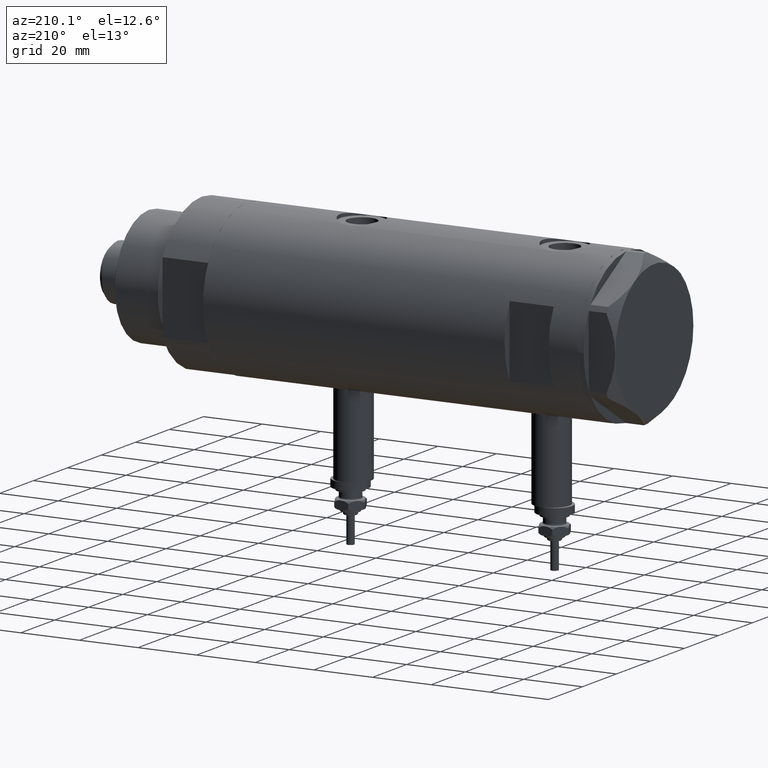
[diagram: clean part render]
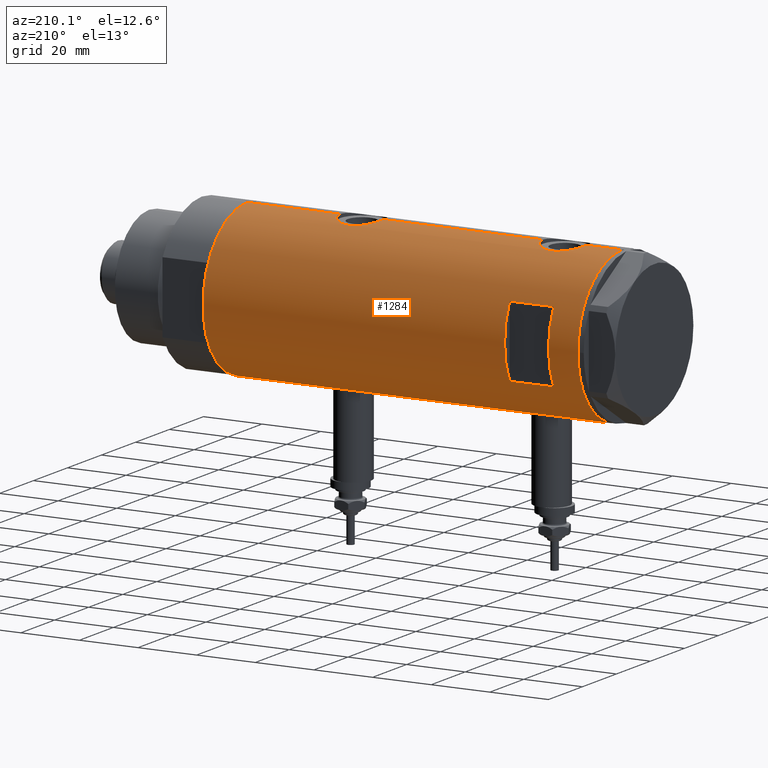
[diagram: same view with one face highlighted and labeled with its STEP entity id]
A machine part, auxiliary view. The second image highlights one B-rep face of the part: STEP entity #1284.
In plain terms, the highlighted cylindrical surface (partial cylindrical patch) has radius 26 mm, axis along (-1, -0, 0).
Its self-contained STEP definition (entity closure, byte-faithful):
#32 = EDGE_CURVE ( 'NONE', #5961, #3522, #2711, .T. ) ;
#46 = VERTEX_POINT ( 'NONE', #4993 ) ;
#73 = CARTESIAN_POINT ( 'NONE',  ( 25.78997056644824681, 3.329333406239041615, -18.01165191566153823 ) ) ;
#213 = CARTESIAN_POINT ( 'NONE',  ( -25.85406084573620689, 2.777003695811653738, 45.56412841326093854 ) ) ;
#227 = CARTESIAN_POINT ( 'NONE',  ( -25.90661719257678541, 2.209805098346974805, -21.80011254218479877 ) ) ;
#250 = CARTESIAN_POINT ( 'NONE',  ( -25.49884629689154281, 5.081547904122033721, 36.30560194303910748 ) ) ;
#255 = VERTEX_POINT ( 'NONE', #2773 ) ;
#262 = CARTESIAN_POINT ( 'NONE',  ( -12.12435565298214080, 23.00000000000000355, 53.94999999999999574 ) ) ;
#309 = EDGE_CURVE ( 'NONE', #2102, #4220, #3301, .T. ) ;
#325 = CARTESIAN_POINT ( 'NONE',  ( -25.43062364804612230, 5.412314182902756343, -30.78227648580932652 ) ) ;
#379 = CARTESIAN_POINT ( 'NONE',  ( 0.000000000000000000, 0.000000000000000000, -63.95000000000000995 ) ) ;
#413 = CARTESIAN_POINT ( 'NONE',  ( 26.00000000000000355, 0.4983968644076020582, 36.95000000000000284 ) ) ;
#426 = CARTESIAN_POINT ( 'NONE',  ( 26.00000000000001776, 0.4983968644076017251, -32.25000000000001421 ) ) ;
#448 = CARTESIAN_POINT ( 'NONE',  ( 24.97016856345953073, 7.245430721349219283, 42.49696959080609560 ) ) ;
#465 = DIRECTION ( 'NONE',  ( -1.000000000000000000, -5.329070518200751394E-15, 0.000000000000000000 ) ) ;
#478 = CARTESIAN_POINT ( 'NONE',  ( 25.78997056644825392, 3.329333406239039839, 51.18834808433847883 ) ) ;
#495 = CARTESIAN_POINT ( 'NONE',  ( -12.12435565298214080, 23.00000000000000355, -63.95000000000000995 ) ) ;
#505 = CARTESIAN_POINT ( 'NONE',  ( 26.00000000000000355, 2.393127611988522640E-16, 36.95000000000000284 ) ) ;
#537 = CARTESIAN_POINT ( 'NONE',  ( 25.52590365620542912, 4.955152228772151446, 50.10123727588237585 ) ) ;
#547 = CARTESIAN_POINT ( 'NONE',  ( 25.20855488770173380, 6.367749707222643885, -20.77997776959044174 ) ) ;
#575 = CARTESIAN_POINT ( 'NONE',  ( -26.00000000000000355, 3.184081677783118585E-15, -63.95000000000000995 ) ) ;
#708 = LINE ( 'NONE', #5603, #4007 ) ;
#718 = CARTESIAN_POINT ( 'NONE',  ( -25.98789693408479451, 0.8193301824841956460, 33.75051019734654290 ) ) ;
#732 = EDGE_CURVE ( 'NONE', #3402, #1214, #4684, .T. ) ;
#756 = CARTESIAN_POINT ( 'NONE',  ( -25.99009688862344092, 0.8219492608955323298, 46.15915939226576370 ) ) ;
#767 = CARTESIAN_POINT ( 'NONE',  ( -25.57189498399056049, 4.707763994471527269, -23.51909718944452976 ) ) ;
#796 = VERTEX_POINT ( 'NONE', #2381 ) ;
#797 = CARTESIAN_POINT ( 'NONE',  ( -25.99999999999999289, 0.2043916521039002843, -33.90000000000000568 ) ) ;
#820 = CARTESIAN_POINT ( 'NONE',  ( -25.45277932469921822, 5.307477387851097461, 36.64327199834690418 ) ) ;
#832 = CARTESIAN_POINT ( 'NONE',  ( -25.45277932469921467, 5.307477387851098349, -30.95672800165311500 ) ) ;
#835 = CARTESIAN_POINT ( 'NONE',  ( 26.00000000000000355, -3.975025925197986111E-20, -17.25000000000000000 ) ) ;
#845 = DIRECTION ( 'NONE',  ( 0.000000000000000000, 0.000000000000000000, 1.000000000000000000 ) ) ;
#846 = CARTESIAN_POINT ( 'NONE',  ( -26.00000000000000355, 3.184081677783118585E-15, -63.95000000000000995 ) ) ;
#850 = DIRECTION ( 'NONE',  ( 1.000000000000000000, 0.000000000000000000, 0.000000000000000000 ) ) ;
#855 = CARTESIAN_POINT ( 'NONE',  ( -25.52275868012767646, 4.960454986366448438, 36.14238370593368188 ) ) ;
#891 = CARTESIAN_POINT ( 'NONE',  ( 25.52465069878074644, 4.952713637311401129, 38.81255139184744962 ) ) ;
#896 = CARTESIAN_POINT ( 'NONE',  ( -25.36894112891957676, 5.694149517195238097, -30.23482505198309056 ) ) ;
#901 = CARTESIAN_POINT ( 'NONE',  ( 25.31017500740586357, 5.951503630041866444, -20.17950407362598853 ) ) ;
#966 = CARTESIAN_POINT ( 'NONE',  ( 25.17424625143662809, 6.506691718592095164, -28.51241626033727528 ) ) ;
#988 = CARTESIAN_POINT ( 'NONE',  ( 25.94484652078419273, 1.709678645892021009, 37.14334653240825901 ) ) ;
#997 = CARTESIAN_POINT ( 'NONE',  ( 24.96662810169869218, 7.257932614256870529, -22.79702690473265392 ) ) ;
#1014 = CARTESIAN_POINT ( 'NONE',  ( 25.08669247833291394, 6.831361936037319893, 47.55537739403791164 ) ) ;
#1023 = CARTESIAN_POINT ( 'NONE',  ( 25.78922176490238627, 3.335318700939508663, -31.48550568766476232 ) ) ;
#1157 = EDGE_CURVE ( 'NONE', #46, #2102, #3114, .T. ) ;
#1195 = CARTESIAN_POINT ( 'NONE',  ( -25.90661719257679252, 2.209805098346976138, 45.79988745781523107 ) ) ;
#1214 = VERTEX_POINT ( 'NONE', #2704 ) ;
#1215 = CARTESIAN_POINT ( 'NONE',  ( 26.00000000000000355, 0.000000000000000000, -63.95000000000000995 ) ) ;
#1218 = DIRECTION ( 'NONE',  ( 0.000000000000000000, 0.000000000000000000, 1.000000000000000000 ) ) ;
#1237 = DIRECTION ( 'NONE',  ( 0.000000000000000000, 0.000000000000000000, 1.000000000000000000 ) ) ;
#1242 = CARTESIAN_POINT ( 'NONE',  ( -25.96182217530153480, 1.422664245316465736, -21.56064726907610307 ) ) ;
#1271 = VERTEX_POINT ( 'NONE', #4862 ) ;
#1278 = CARTESIAN_POINT ( 'NONE',  ( -25.31518616157687873, 5.930210831981640673, -29.66587117207026836 ) ) ;
#1284 = ADVANCED_FACE ( 'NONE', ( #4248, #4372 ), #2354, .T. ) ;
#1300 = CARTESIAN_POINT ( 'NONE',  ( -25.59680708126580129, 4.563450671387941249, 35.67456050020032166 ) ) ;
#1309 = CARTESIAN_POINT ( 'NONE',  ( -25.92432690655986960, 2.018143994254072648, -33.57929422822715537 ) ) ;
#1324 = CARTESIAN_POINT ( 'NONE',  ( 0.000000000000000000, 0.000000000000000000, -63.95000000000000995 ) ) ;
#1340 = CARTESIAN_POINT ( 'NONE',  ( -25.23757896588370642, 6.250168635417626462, -28.05675308410501501 ) ) ;
#1375 = CARTESIAN_POINT ( 'NONE',  ( -25.98057228346869252, 1.024901789261879914, -33.81880585854828070 ) ) ;
#1380 = CARTESIAN_POINT ( 'NONE',  ( 25.89067367629245808, 2.424883365422559223, -17.63594795494831402 ) ) ;
#1384 = CARTESIAN_POINT ( 'NONE',  ( 12.12435565298214080, 23.00000000000000355, 53.94999999999999574 ) ) ;
#1399 = CARTESIAN_POINT ( 'NONE',  ( 25.17424625143662453, 6.506691718592097828, 40.68758373966274178 ) ) ;
#1410 = CARTESIAN_POINT ( 'NONE',  ( 25.92799636947105668, 1.948138538329396319, -31.99677687788214797 ) ) ;
#1418 = DIRECTION ( 'NONE',  ( 0.000000000000000000, 0.000000000000000000, 1.000000000000000000 ) ) ;
#1442 = CARTESIAN_POINT ( 'NONE',  ( 25.59528664075984139, 4.573671112500301561, -30.69909503516727156 ) ) ;
#1448 = DIRECTION ( 'NONE',  ( -0.000000000000000000, -0.000000000000000000, 1.000000000000000000 ) ) ;
#1464 = CARTESIAN_POINT ( 'NONE',  ( 25.99652140603931016, 0.4914164889130518965, 51.93796820480458365 ) ) ;
#1477 = CARTESIAN_POINT ( 'NONE',  ( 24.90951684770588415, 7.451587374037533351, -25.73395604521198621 ) ) ;
#1493 = ORIENTED_EDGE ( 'NONE', *, *, #2430, .F. ) ;
#1497 = CARTESIAN_POINT ( 'NONE',  ( 25.38132706741445688, 5.649034551923787895, 39.49268047185955766 ) ) ;
#1505 = CARTESIAN_POINT ( 'NONE',  ( 25.48882460966380492, 5.133289275481214275, -30.22343523597908188 ) ) ;
#1527 = DIRECTION ( 'NONE',  ( 0.000000000000000000, 0.000000000000000000, 1.000000000000000000 ) ) ;
#1536 = CIRCLE ( 'NONE', #1627, 26.00000000000000355 ) ;
#1559 = VECTOR ( 'NONE', #4365, 1000.000000000000000 ) ;
#1627 = AXIS2_PLACEMENT_3D ( 'NONE', #3548, #5450, #3967 ) ;
#1654 = CARTESIAN_POINT ( 'NONE',  ( -25.99009688862344092, 0.8219492608955333290, -21.44084060773424838 ) ) ;
#1677 = CARTESIAN_POINT ( 'NONE',  ( -25.57189498399055338, 4.707763994471528157, 44.08090281055548587 ) ) ;
#1715 = ORIENTED_EDGE ( 'NONE', *, *, #5580, .F. ) ;
#1716 = CARTESIAN_POINT ( 'NONE',  ( -25.81251897318926680, 3.135439098787736523, -22.22800821914827907 ) ) ;
#1752 = CARTESIAN_POINT ( 'NONE',  ( -25.24784248027029676, 6.209126813737964490, -28.47268161688059962 ) ) ;
#1778 = CARTESIAN_POINT ( 'NONE',  ( -25.96182217530152769, 1.422664245316465070, 46.03935273092390190 ) ) ;
#1788 = CARTESIAN_POINT ( 'NONE',  ( -25.27696731428695642, 6.089059008147562402, -26.22583693040519037 ) ) ;
#1817 = CARTESIAN_POINT ( 'NONE',  ( -25.95208098418916975, 1.628413954368980843, -33.69806792170715681 ) ) ;
#1843 = CARTESIAN_POINT ( 'NONE',  ( 25.88814720404043257, 2.420758939209243898, 37.34711713171546421 ) ) ;
#1849 = CARTESIAN_POINT ( 'NONE',  ( -25.33346170681503651, 5.849967696906715808, -25.44052947900492967 ) ) ;
#1876 = CARTESIAN_POINT ( 'NONE',  ( 25.59528664075984850, 4.573671112500303337, 38.50090496483275615 ) ) ;
#1882 = CARTESIAN_POINT ( 'NONE',  ( -25.52275868012767646, 4.960454986366448438, -31.45761629406634086 ) ) ;
#1886 = CARTESIAN_POINT ( 'NONE',  ( 25.41763780493360514, 5.474943943663459933, -19.61823686211066686 ) ) ;
#1896 = DIRECTION ( 'NONE',  ( 0.000000000000000000, 0.000000000000000000, 1.000000000000000000 ) ) ;
#1904 = CARTESIAN_POINT ( 'NONE',  ( 24.89471231507667071, 7.500219916954787180, 44.93878226883029470 ) ) ;
#1915 = CARTESIAN_POINT ( 'NONE',  ( 26.00000000000000355, 6.604469597105595072E-16, -32.25000000000000000 ) ) ;
#1930 = EDGE_CURVE ( 'NONE', #1271, #5961, #3581, .T. ) ;
#1938 = CARTESIAN_POINT ( 'NONE',  ( 25.98255381630415428, 0.9836221648041301169, 51.88933098058191007 ) ) ;
#1951 = CARTESIAN_POINT ( 'NONE',  ( 25.86510134953875450, 2.654921787384012521, -31.76867061694904493 ) ) ;
#1984 = CARTESIAN_POINT ( 'NONE',  ( 25.98569222077105323, 0.9879514382926379845, -32.20081846687561722 ) ) ;
#2005 = VERTEX_POINT ( 'NONE', #1384 ) ;
#2011 = VERTEX_POINT ( 'NONE', #5318 ) ;
#2020 = ORIENTED_EDGE ( 'NONE', *, *, #6134, .F. ) ;
#2077 = CARTESIAN_POINT ( 'NONE',  ( -25.38675822915648084, 5.615881323213569587, -24.87693218337989975 ) ) ;
#2102 = VERTEX_POINT ( 'NONE', #4294 ) ;
#2134 = CARTESIAN_POINT ( 'NONE',  ( -26.00000000000000711, 0.4145874687851189844, -21.40000000000000924 ) ) ;
#2157 = CARTESIAN_POINT ( 'NONE',  ( -25.72105193281917224, 3.813738527046911297, 44.91833691099433423 ) ) ;
#2193 = CARTESIAN_POINT ( 'NONE',  ( -25.28673619335055278, 6.048783215285168602, 38.32449009651820404 ) ) ;
#2225 = CARTESIAN_POINT ( 'NONE',  ( -25.33346170681504717, 5.849967696906719361, 42.15947052099510017 ) ) ;
#2295 = CARTESIAN_POINT ( 'NONE',  ( -25.92257874449351007, 2.014648337067150408, 45.86996418363678174 ) ) ;
#2301 = CARTESIAN_POINT ( 'NONE',  ( 0.000000000000000000, 0.000000000000000000, 63.95000000000000995 ) ) ;
#2306 = CARTESIAN_POINT ( 'NONE',  ( -25.98789693408478740, 0.8193301824841957570, -33.84948980265347274 ) ) ;
#2354 = CYLINDRICAL_SURFACE ( 'NONE', #3983, 26.00000000000000355 ) ;
#2359 = CARTESIAN_POINT ( 'NONE',  ( 25.38117076385347914, 5.641057083563588925, 49.39856579741849174 ) ) ;
#2366 = CARTESIAN_POINT ( 'NONE',  ( -25.59680708126580129, 4.563450671387943025, -31.92543949979970108 ) ) ;
#2371 = CARTESIAN_POINT ( 'NONE',  ( 25.38117076385348270, 5.641057083563593366, -19.80143420258153242 ) ) ;
#2381 = CARTESIAN_POINT ( 'NONE',  ( 12.12435565298213724, 23.00000000000000355, 38.94999999999999574 ) ) ;
#2385 = VECTOR ( 'NONE', #1418, 1000.000000000000000 ) ;
#2412 = CARTESIAN_POINT ( 'NONE',  ( 12.12435565298214080, 23.00000000000000355, -63.95000000000000995 ) ) ;
#2425 = CARTESIAN_POINT ( 'NONE',  ( 25.89067367629246164, 2.424883365422555670, 51.56405204505168172 ) ) ;
#2430 = EDGE_CURVE ( 'NONE', #3402, #5649, #6285, .T. ) ;
#2435 = CARTESIAN_POINT ( 'NONE',  ( 25.72923282622328855, 3.765147152416742138, -31.25485575784708203 ) ) ;
#2454 = CARTESIAN_POINT ( 'NONE',  ( 25.72923282622329211, 3.765147152416744802, 37.94514424215291371 ) ) ;
#2466 = CARTESIAN_POINT ( 'NONE',  ( 25.11254978876590016, 6.737777305585156640, -28.08025351746412213 ) ) ;
#2486 = CARTESIAN_POINT ( 'NONE',  ( 25.27545867390325185, 6.096774941222090405, 48.82477406957965371 ) ) ;
#2495 = EDGE_CURVE ( 'NONE', #2011, #4220, #5470, .T. ) ;
#2499 = CARTESIAN_POINT ( 'NONE',  ( 25.52590365620542556, 4.955152228772148781, -19.09876272411762343 ) ) ;
#2552 = CARTESIAN_POINT ( 'NONE',  ( 25.97197502027376004, 1.230965554787594396, -17.34759175501625350 ) ) ;
#2585 = CARTESIAN_POINT ( 'NONE',  ( 26.00000000000001066, 0.2455784580650491045, -17.25000000000000355 ) ) ;
#2669 = CARTESIAN_POINT ( 'NONE',  ( -25.99759026373432036, 0.4091325989570642196, 33.71000109955100754 ) ) ;
#2704 = CARTESIAN_POINT ( 'NONE',  ( -26.00000000000000355, 3.184077527313362130E-15, 33.70000000000000995 ) ) ;
#2705 = CARTESIAN_POINT ( 'NONE',  ( -26.00000000000000355, 3.184077527313362130E-15, 33.70000000000000995 ) ) ;
#2711 = B_SPLINE_CURVE_WITH_KNOTS ( 'NONE', 3,
 ( #1915, #426, #1984, #5887, #1410, #3868, #1951, #1023, #2435, #5821, #1442, #3357, #1505, #3392, #5350, #966, #2466, #2916, #3451, #5856, #3905, #1477, #3426, #2970, #5386, #997, #4806, #4326, #4937, #2942, #547, #4906, #901, #2371, #1886, #2499, #5759, #4455, #73, #1380, #5057, #2552, #4083, #3029, #2585, #3602 ),
 .UNSPECIFIED., .F., .F.,
 ( 4, 2, 2, 2, 2, 2, 2, 2, 2, 2, 2, 2, 2, 2, 2, 2, 2, 2, 2, 2, 2, 2, 4 ),
 ( 6.413325872240687501E-19, 0.001473395154583055080, 0.002210092731874579910, 0.002946790309166104523, 0.004420185463749155483, 0.005156883041040686601, 0.005893580618332217719, 0.007366975772915269546, 0.008840370927498323109, 0.009577068504789844686, 0.01031376608208136626, 0.01178716123666441982, 0.01326055639124747165, 0.01473395154583052175, 0.01547064912312205720, 0.01620734670041358919, 0.01694404427770512117, 0.01768074185499665316, 0.01915413700957970325, 0.02062753216416275681, 0.02210092731874581037, 0.02283762489603733542, 0.02357432247332886047 ),
 .UNSPECIFIED. ) ;
#2714 = CARTESIAN_POINT ( 'NONE',  ( -25.42927140605240766, 5.422776733968210472, -24.51556003986717513 ) ) ;
#2732 = EDGE_LOOP ( 'NONE', ( #3491, #5391, #1493, #5859, #5529, #4868, #3444, #3093, #5176, #3417, #5255, #3667 ) ) ;
#2743 = CARTESIAN_POINT ( 'NONE',  ( -25.28915991580759837, 6.038390257328908994, -26.02447348853095122 ) ) ;
#2773 = CARTESIAN_POINT ( 'NONE',  ( 26.00000000000000355, 2.393127611988522640E-16, 36.95000000000000284 ) ) ;
#2794 = LINE ( 'NONE', #495, #3193 ) ;
#2832 = CARTESIAN_POINT ( 'NONE',  ( 25.78922176490237561, 3.335318700939509107, 37.71449431233524052 ) ) ;
#2863 = CARTESIAN_POINT ( 'NONE',  ( 25.92799636947105313, 1.948138538329398317, 37.20322312211785487 ) ) ;
#2904 = CARTESIAN_POINT ( 'NONE',  ( 25.72868876879096689, 3.768709330223694920, 50.95267486870066165 ) ) ;
#2916 = CARTESIAN_POINT ( 'NONE',  ( 25.03487248886524341, 7.018875226450789206, -27.40423217392064359 ) ) ;
#2942 = CARTESIAN_POINT ( 'NONE',  ( 25.17636585680006078, 6.493453152855879651, -20.98900750337198318 ) ) ;
#2970 = CARTESIAN_POINT ( 'NONE',  ( 24.89471231507667426, 7.500219916954788957, -24.26121773116972236 ) ) ;
#3029 = CARTESIAN_POINT ( 'NONE',  ( 25.99652140603931727, 0.4914164889130551717, -17.26203179519542630 ) ) ;
#3093 = ORIENTED_EDGE ( 'NONE', *, *, #1157, .F. ) ;
#3114 = LINE ( 'NONE', #4589, #5220 ) ;
#3125 = CARTESIAN_POINT ( 'NONE',  ( -26.00000000000000355, 9.891741702313250758E-16, -21.40000000000000568 ) ) ;
#3142 = CARTESIAN_POINT ( 'NONE',  ( -25.81251897318925614, 3.135439098787738743, 45.37199178085171525 ) ) ;
#3150 = EDGE_CURVE ( 'NONE', #3458, #2005, #1536, .T. ) ;
#3156 = CARTESIAN_POINT ( 'NONE',  ( -25.85406084573622110, 2.777003695811654183, -22.03587158673905222 ) ) ;
#3179 = CARTESIAN_POINT ( 'NONE',  ( -25.24766879991037172, 6.209837761082653174, 40.76849569029695886 ) ) ;
#3189 = CARTESIAN_POINT ( 'NONE',  ( -25.67095236150574067, 4.133649689219789813, -22.94464771725742125 ) ) ;
#3192 = CARTESIAN_POINT ( 'NONE',  ( -26.00000000000000355, 9.891741702313250758E-16, -21.40000000000000568 ) ) ;
#3193 = VECTOR ( 'NONE', #3817, 1000.000000000000000 ) ;
#3196 = AXIS2_PLACEMENT_3D ( 'NONE', #2301, #1237, #6066 ) ;
#3214 = CARTESIAN_POINT ( 'NONE',  ( -25.81206132723605506, 3.139065735901517495, 34.53021230639124894 ) ) ;
#3225 = CARTESIAN_POINT ( 'NONE',  ( -26.00000000000000355, 3.184077527325983904E-15, -33.90000000000001279 ) ) ;
#3289 = CARTESIAN_POINT ( 'NONE',  ( -25.72087293759780735, 3.814831448865741326, -32.61738294827859619 ) ) ;
#3301 = CIRCLE ( 'NONE', #3196, 26.00000000000000355 ) ;
#3345 = CARTESIAN_POINT ( 'NONE',  ( 25.86510134953875450, 2.654921787384014298, 37.43132938305095792 ) ) ;
#3357 = CARTESIAN_POINT ( 'NONE',  ( 25.52465069878074999, 4.952713637311402906, -30.38744860815256388 ) ) ;
#3364 = VECTOR ( 'NONE', #3677, 1000.000000000000000 ) ;
#3381 = CARTESIAN_POINT ( 'NONE',  ( 25.03487248886524696, 7.018875226450792759, 41.79576782607938412 ) ) ;
#3392 = CARTESIAN_POINT ( 'NONE',  ( 25.38132706741445332, 5.649034551923782566, -29.70731952814044874 ) ) ;
#3402 = VERTEX_POINT ( 'NONE', #3192 ) ;
#3416 = CARTESIAN_POINT ( 'NONE',  ( 25.99999999999999645, 0.2455784580650500204, 51.94999999999998863 ) ) ;
#3417 = ORIENTED_EDGE ( 'NONE', *, *, #5392, .F. ) ;
#3426 = CARTESIAN_POINT ( 'NONE',  ( 24.89484527721569052, 7.499778575171893280, -25.24550805482937932 ) ) ;
#3443 = CARTESIAN_POINT ( 'NONE',  ( 24.90951684770588059, 7.451587374037537792, 43.46604395478804861 ) ) ;
#3444 = ORIENTED_EDGE ( 'NONE', *, *, #309, .F. ) ;
#3451 = CARTESIAN_POINT ( 'NONE',  ( 25.01140519645288407, 7.101774040639619479, -27.17392235700823733 ) ) ;
#3457 = ORIENTED_EDGE ( 'NONE', *, *, #5574, .F. ) ;
#3458 = VERTEX_POINT ( 'NONE', #262 ) ;
#3491 = ORIENTED_EDGE ( 'NONE', *, *, #3869, .T. ) ;
#3522 = VERTEX_POINT ( 'NONE', #835 ) ;
#3548 = CARTESIAN_POINT ( 'NONE',  ( 0.000000000000000000, 0.000000000000000000, 53.94999999999999574 ) ) ;
#3554 = ORIENTED_EDGE ( 'NONE', *, *, #3150, .F. ) ;
#3574 = CIRCLE ( 'NONE', #3787, 26.00000000000000355 ) ;
#3581 = LINE ( 'NONE', #1215, #3364 ) ;
#3594 = DIRECTION ( 'NONE',  ( 0.000000000000000000, 0.000000000000000000, 1.000000000000000000 ) ) ;
#3602 = CARTESIAN_POINT ( 'NONE',  ( 26.00000000000000355, -3.975025925197986111E-20, -17.25000000000000000 ) ) ;
#3607 = CARTESIAN_POINT ( 'NONE',  ( -25.92257874449350297, 2.014648337067150408, -21.73003581636323389 ) ) ;
#3626 = CARTESIAN_POINT ( 'NONE',  ( -25.98057228346870673, 1.024901789261881913, 33.78119414145175625 ) ) ;
#3644 = CARTESIAN_POINT ( 'NONE',  ( -26.00000000000000355, 3.184081677783118585E-15, -63.95000000000000995 ) ) ;
#3652 = CARTESIAN_POINT ( 'NONE',  ( -25.23757896588370286, 6.250168635417627350, 39.54324691589501128 ) ) ;
#3667 = ORIENTED_EDGE ( 'NONE', *, *, #1930, .F. ) ;
#3668 = CARTESIAN_POINT ( 'NONE',  ( -25.72105193281916513, 3.813738527046907745, -22.68166308900567785 ) ) ;
#3677 = DIRECTION ( 'NONE',  ( 0.000000000000000000, 0.000000000000000000, 1.000000000000000000 ) ) ;
#3691 = CARTESIAN_POINT ( 'NONE',  ( -25.28915991580759837, 6.038390257328908106, 41.57552651146907863 ) ) ;
#3728 = CARTESIAN_POINT ( 'NONE',  ( -25.85449082491264861, 2.772892880050687126, 34.33390702514679305 ) ) ;
#3738 = CARTESIAN_POINT ( 'NONE',  ( -25.23766275406408965, 6.249830297096024445, -27.23808095444882582 ) ) ;
#3760 = CARTESIAN_POINT ( 'NONE',  ( -25.36894112891956965, 5.694149517195234544, 37.36517494801692862 ) ) ;
#3787 = AXIS2_PLACEMENT_3D ( 'NONE', #1324, #1896, #850 ) ;
#3794 = CARTESIAN_POINT ( 'NONE',  ( 24.96662810169870284, 7.257932614256869641, 46.40297309526737024 ) ) ;
#3814 = CARTESIAN_POINT ( 'NONE',  ( 0.000000000000000000, 0.000000000000000000, 38.94999999999999574 ) ) ;
#3817 = DIRECTION ( 'NONE',  ( 0.000000000000000000, 0.000000000000000000, 1.000000000000000000 ) ) ;
#3829 = CARTESIAN_POINT ( 'NONE',  ( 25.63006864069250668, 4.375159448492148329, 38.35345588241117554 ) ) ;
#3838 = CARTESIAN_POINT ( 'NONE',  ( -25.67176285215958842, 4.128807479817787396, -32.35991598451124673 ) ) ;
#3857 = CARTESIAN_POINT ( 'NONE',  ( 25.17636585680005368, 6.493453152855872546, 48.21099249662804453 ) ) ;
#3868 = CARTESIAN_POINT ( 'NONE',  ( 25.88814720404043968, 2.420758939209242566, -31.85288286828453508 ) ) ;
#3869 = EDGE_CURVE ( 'NONE', #1271, #4041, #3574, .T. ) ;
#3891 = CARTESIAN_POINT ( 'NONE',  ( 25.97197502027376004, 1.230965554787593952, 51.85240824498373513 ) ) ;
#3905 = CARTESIAN_POINT ( 'NONE',  ( 24.95233689475078265, 7.306396477445174398, -26.46103813146666184 ) ) ;
#3928 = CARTESIAN_POINT ( 'NONE',  ( 25.59685363299823280, 4.579266302355747165, 50.40972068102655612 ) ) ;
#3967 = DIRECTION ( 'NONE',  ( 1.000000000000000000, -5.329070518200751394E-15, 0.000000000000000000 ) ) ;
#3983 = AXIS2_PLACEMENT_3D ( 'NONE', #379, #4764, #6325 ) ;
#4007 = VECTOR ( 'NONE', #1218, 1000.000000000000000 ) ;
#4030 = CARTESIAN_POINT ( 'NONE',  ( -25.52242378584899640, 4.965907353613392416, -23.83280397078263491 ) ) ;
#4041 = VERTEX_POINT ( 'NONE', #3644 ) ;
#4083 = CARTESIAN_POINT ( 'NONE',  ( 25.98255381630415783, 0.9836221648041323373, -17.31066901941807501 ) ) ;
#4112 = CARTESIAN_POINT ( 'NONE',  ( -25.95015815577423268, 1.621168830448741938, 45.98958570439819482 ) ) ;
#4145 = CARTESIAN_POINT ( 'NONE',  ( -25.38675822915648084, 5.615881323213569587, 42.72306781662011588 ) ) ;
#4175 = CARTESIAN_POINT ( 'NONE',  ( -25.57167265924276123, 4.701795585128874855, 35.82723711689968837 ) ) ;
#4213 = CARTESIAN_POINT ( 'NONE',  ( -25.31738333113901973, 5.918941409682879851, 41.96757922472325220 ) ) ;
#4220 = VERTEX_POINT ( 'NONE', #5638 ) ;
#4243 = CARTESIAN_POINT ( 'NONE',  ( -26.00000000000000355, 3.184081677783118585E-15, -63.95000000000000995 ) ) ;
#4248 = FACE_BOUND ( 'NONE', #4550, .T. ) ;
#4249 = CARTESIAN_POINT ( 'NONE',  ( -25.99999999999999289, 0.2043916521039015888, 33.70000000000000284 ) ) ;
#4294 = CARTESIAN_POINT ( 'NONE',  ( 26.00000000000000355, 0.000000000000000000, 63.95000000000000995 ) ) ;
#4322 = CARTESIAN_POINT ( 'NONE',  ( -25.81206132723605151, 3.139065735901513943, -33.06978769360876669 ) ) ;
#4326 = CARTESIAN_POINT ( 'NONE',  ( 25.08669247833292104, 6.831361936037323446, -21.64462260596211252 ) ) ;
#4327 = AXIS2_PLACEMENT_3D ( 'NONE', #3814, #1448, #465 ) ;
#4349 = CARTESIAN_POINT ( 'NONE',  ( 24.95233689475078975, 7.306396477445178839, 42.73896186853335877 ) ) ;
#4365 = DIRECTION ( 'NONE',  ( -0.000000000000000000, -0.000000000000000000, -1.000000000000000000 ) ) ;
#4372 = FACE_OUTER_BOUND ( 'NONE', #2732, .T. ) ;
#4377 = CARTESIAN_POINT ( 'NONE',  ( 25.93077501166306575, 1.957027822413552220, 51.70697858562407845 ) ) ;
#4411 = CARTESIAN_POINT ( 'NONE',  ( 25.98569222077104257, 0.9879514382926377625, 36.99918153312438562 ) ) ;
#4455 = CARTESIAN_POINT ( 'NONE',  ( 25.72868876879096689, 3.768709330223691811, -18.24732513129934830 ) ) ;
#4550 = EDGE_LOOP ( 'NONE', ( #3457, #1715, #3554, #2020 ) ) ;
#4589 = CARTESIAN_POINT ( 'NONE',  ( 26.00000000000000355, 0.000000000000000000, -63.95000000000000995 ) ) ;
#4603 = CARTESIAN_POINT ( 'NONE',  ( -25.95015815577422558, 1.621168830448742382, -21.61041429560181371 ) ) ;
#4627 = CARTESIAN_POINT ( 'NONE',  ( -25.67176285215957421, 4.128807479817785620, 35.24008401548878311 ) ) ;
#4660 = CARTESIAN_POINT ( 'NONE',  ( -25.52242378584899285, 4.965907353613394193, 43.76719602921738783 ) ) ;
#4676 = B_SPLINE_CURVE_WITH_KNOTS ( 'NONE', 3,
 ( #4730, #5651, #756, #1778, #4112, #2295, #1195, #213, #3142, #2157, #5614, #1677, #4660, #6090, #4145, #2225, #4213, #3691, #6059, #3179, #5583, #3652, #5238, #2193, #6194, #3760, #5143, #5205, #820, #250, #855, #4175, #1300, #4627, #6122, #3214, #3728, #5106, #4696, #3626, #718, #2669, #4249, #2705 ),
 .UNSPECIFIED., .F., .F.,
 ( 4, 2, 2, 2, 2, 2, 2, 2, 2, 2, 2, 2, 2, 2, 2, 2, 2, 2, 2, 2, 2, 4 ),
 ( 2.732276935479321607E-19, 0.001225774033668403139, 0.001838661050502602649, 0.002451548067336802375, 0.003677322101005202262, 0.004903096134673601281, 0.006128870168342001601, 0.007354644202010401054, 0.007967531218844600346, 0.008580418235678800506, 0.009806192269347199092, 0.01103196630301559768, 0.01225774033668399626, 0.01287062735351819469, 0.01348351437035239485, 0.01409640138718659501, 0.01470928840402079343, 0.01593506243768920069, 0.01716083647135761142, 0.01838661050502602215, 0.01899949752186022578, 0.01961238453869442941 ),
 .UNSPECIFIED. ) ;
#4684 = LINE ( 'NONE', #4243, #5166 ) ;
#4696 = CARTESIAN_POINT ( 'NONE',  ( -25.95208098418916620, 1.628413954368980399, 33.90193207829285882 ) ) ;
#4730 = CARTESIAN_POINT ( 'NONE',  ( -26.00000000000000355, -2.813058302341337106E-16, 46.20000000000000284 ) ) ;
#4764 = DIRECTION ( 'NONE',  ( 0.000000000000000000, 0.000000000000000000, 1.000000000000000000 ) ) ;
#4794 = CARTESIAN_POINT ( 'NONE',  ( 25.31017500740586357, 5.951503630041860227, 49.02049592637404629 ) ) ;
#4806 = CARTESIAN_POINT ( 'NONE',  ( 25.00820649268565532, 7.115348876445588111, -22.32815999524549611 ) ) ;
#4851 = LINE ( 'NONE', #2412, #1559 ) ;
#4862 = CARTESIAN_POINT ( 'NONE',  ( 26.00000000000000355, 0.000000000000000000, -63.95000000000000995 ) ) ;
#4866 = CARTESIAN_POINT ( 'NONE',  ( 25.11254978876589661, 6.737777305585160192, 41.11974648253589493 ) ) ;
#4868 = ORIENTED_EDGE ( 'NONE', *, *, #2495, .T. ) ;
#4906 = CARTESIAN_POINT ( 'NONE',  ( 25.27545867390324830, 6.096774941222096622, -20.37522593042036334 ) ) ;
#4916 = VECTOR ( 'NONE', #1527, 1000.000000000000000 ) ;
#4927 = CARTESIAN_POINT ( 'NONE',  ( 25.41763780493359803, 5.474943943663455492, 49.58176313788934664 ) ) ;
#4937 = CARTESIAN_POINT ( 'NONE',  ( 25.11550258961939619, 6.725017566862034002, -21.42071522193981181 ) ) ;
#4993 = CARTESIAN_POINT ( 'NONE',  ( 26.00000000000000355, -3.975025925197986111E-20, 51.95000000000000284 ) ) ;
#5057 = CARTESIAN_POINT ( 'NONE',  ( 25.93077501166307641, 1.957027822413550888, -17.49302141437590663 ) ) ;
#5106 = CARTESIAN_POINT ( 'NONE',  ( -25.92432690655986960, 2.018143994254070872, 34.02070577177285315 ) ) ;
#5143 = CARTESIAN_POINT ( 'NONE',  ( -25.38875076695534716, 5.605452563035134617, 37.17814099175895848 ) ) ;
#5166 = VECTOR ( 'NONE', #845, 1000.000000000000000 ) ;
#5176 = ORIENTED_EDGE ( 'NONE', *, *, #5269, .F. ) ;
#5186 = CARTESIAN_POINT ( 'NONE',  ( -25.99759026373432391, 0.4091325989570628874, -33.88999890044899388 ) ) ;
#5205 = CARTESIAN_POINT ( 'NONE',  ( -25.43062364804612230, 5.412314182902753679, 36.81772351419071043 ) ) ;
#5216 = CARTESIAN_POINT ( 'NONE',  ( -25.28673619335055633, 6.048783215285168602, -29.27550990348179027 ) ) ;
#5220 = VECTOR ( 'NONE', #3594, 1000.000000000000000 ) ;
#5238 = CARTESIAN_POINT ( 'NONE',  ( -25.24784248027030031, 6.209126813737962713, 39.12731838311943022 ) ) ;
#5251 = CARTESIAN_POINT ( 'NONE',  ( -25.49884629689154636, 5.081547904122037274, -31.29439805696091526 ) ) ;
#5255 = ORIENTED_EDGE ( 'NONE', *, *, #32, .F. ) ;
#5269 = EDGE_CURVE ( 'NONE', #255, #46, #6131, .T. ) ;
#5275 = CARTESIAN_POINT ( 'NONE',  ( 25.11550258961939974, 6.725017566862028673, 47.77928477806020169 ) ) ;
#5281 = CARTESIAN_POINT ( 'NONE',  ( -25.38875076695535782, 5.605452563035137281, -30.42185900824106426 ) ) ;
#5293 = LINE ( 'NONE', #846, #2385 ) ;
#5318 = CARTESIAN_POINT ( 'NONE',  ( -26.00000000000000355, -2.813058302341337106E-16, 46.20000000000000284 ) ) ;
#5337 = CARTESIAN_POINT ( 'NONE',  ( 25.01140519645289828, 7.101774040639625696, 42.02607764299177973 ) ) ;
#5350 = CARTESIAN_POINT ( 'NONE',  ( 25.30960479024497900, 5.958491152160520166, -29.33139677679963953 ) ) ;
#5351 = CIRCLE ( 'NONE', #4327, 26.00000000000000355 ) ;
#5375 = CARTESIAN_POINT ( 'NONE',  ( 26.00000000000000355, -3.975025925197986111E-20, 51.95000000000000284 ) ) ;
#5386 = CARTESIAN_POINT ( 'NONE',  ( 24.90976107960111818, 7.450765568638821890, -23.76117130648535891 ) ) ;
#5392 = EDGE_CURVE ( 'NONE', #3522, #255, #708, .T. ) ;
#5391 = ORIENTED_EDGE ( 'NONE', *, *, #6094, .T. ) ;
#5403 = CARTESIAN_POINT ( 'NONE',  ( 24.90976107960111818, 7.450765568638821890, 45.43882869351466525 ) ) ;
#5450 = DIRECTION ( 'NONE',  ( -0.000000000000000000, -0.000000000000000000, -1.000000000000000000 ) ) ;
#5470 = LINE ( 'NONE', #575, #4916 ) ;
#5476 = VERTEX_POINT ( 'NONE', #6147 ) ;
#5529 = ORIENTED_EDGE ( 'NONE', *, *, #5622, .F. ) ;
#5574 = EDGE_CURVE ( 'NONE', #796, #5476, #5351, .T. ) ;
#5580 = EDGE_CURVE ( 'NONE', #2005, #796, #4851, .T. ) ;
#5583 = CARTESIAN_POINT ( 'NONE',  ( -25.23766275406409321, 6.249830297096026221, 40.36191904555118271 ) ) ;
#5603 = CARTESIAN_POINT ( 'NONE',  ( 26.00000000000000355, 0.000000000000000000, -63.95000000000000995 ) ) ;
#5614 = CARTESIAN_POINT ( 'NONE',  ( -25.67095236150574067, 4.133649689219791590, 44.65535228274259083 ) ) ;
#5622 = EDGE_CURVE ( 'NONE', #2011, #1214, #4676, .T. ) ;
#5638 = CARTESIAN_POINT ( 'NONE',  ( -26.00000000000000355, 3.184081677783118585E-15, 63.95000000000000995 ) ) ;
#5649 = VERTEX_POINT ( 'NONE', #5685 ) ;
#5651 = CARTESIAN_POINT ( 'NONE',  ( -26.00000000000000711, 0.4145874687851189289, 46.20000000000000995 ) ) ;
#5685 = CARTESIAN_POINT ( 'NONE',  ( -26.00000000000000355, 3.184077527325983904E-15, -33.90000000000001279 ) ) ;
#5695 = CARTESIAN_POINT ( 'NONE',  ( -25.85449082491264861, 2.772892880050691122, -33.26609297485325101 ) ) ;
#5725 = CARTESIAN_POINT ( 'NONE',  ( -25.31738333113901263, 5.918941409682878962, -25.63242077527679186 ) ) ;
#5749 = CARTESIAN_POINT ( 'NONE',  ( 25.00820649268565887, 7.115348876445586335, 46.87184000475451739 ) ) ;
#5759 = CARTESIAN_POINT ( 'NONE',  ( 25.59685363299822569, 4.579266302355748053, -18.79027931897347514 ) ) ;
#5779 = CARTESIAN_POINT ( 'NONE',  ( 25.30960479024496834, 5.958491152160524607, 39.86860322320038819 ) ) ;
#5807 = CARTESIAN_POINT ( 'NONE',  ( 25.20855488770172315, 6.367749707222637667, 48.42002223040957887 ) ) ;
#5821 = CARTESIAN_POINT ( 'NONE',  ( 25.63006864069250668, 4.375159448492144776, -30.84654411758883086 ) ) ;
#5856 = CARTESIAN_POINT ( 'NONE',  ( 24.97016856345952007, 7.245430721349214842, -26.70303040919391435 ) ) ;
#5859 = ORIENTED_EDGE ( 'NONE', *, *, #732, .T. ) ;
#5878 = CARTESIAN_POINT ( 'NONE',  ( 25.48882460966379782, 5.133289275481216940, 38.97656476402091386 ) ) ;
#5887 = CARTESIAN_POINT ( 'NONE',  ( 25.94484652078418208, 1.709678645892019899, -32.05665346759175804 ) ) ;
#5961 = VERTEX_POINT ( 'NONE', #6114 ) ;
#6059 = CARTESIAN_POINT ( 'NONE',  ( -25.27696731428695998, 6.089059008147561514, 41.37416306959482881 ) ) ;
#6066 = DIRECTION ( 'NONE',  ( 1.000000000000000000, 0.000000000000000000, 0.000000000000000000 ) ) ;
#6090 = CARTESIAN_POINT ( 'NONE',  ( -25.42927140605241121, 5.422776733968213136, 43.08443996013281918 ) ) ;
#6094 = EDGE_CURVE ( 'NONE', #4041, #5649, #5293, .T. ) ;
#6114 = CARTESIAN_POINT ( 'NONE',  ( 26.00000000000000355, 6.604469597105595072E-16, -32.25000000000000000 ) ) ;
#6122 = CARTESIAN_POINT ( 'NONE',  ( -25.72087293759780380, 3.814831448865741770, 34.98261705172143365 ) ) ;
#6131 = B_SPLINE_CURVE_WITH_KNOTS ( 'NONE', 3,
 ( #505, #413, #4411, #988, #2863, #1843, #3345, #2832, #2454, #3829, #1876, #891, #5878, #1497, #5779, #1399, #4866, #3381, #5337, #448, #4349, #3443, #6300, #1904, #5403, #3794, #5749, #1014, #5275, #3857, #5807, #2486, #4794, #2359, #4927, #537, #3928, #2904, #478, #2425, #4377, #3891, #1938, #1464, #3416, #5375 ),
 .UNSPECIFIED., .F., .F.,
 ( 4, 2, 2, 2, 2, 2, 2, 2, 2, 2, 2, 2, 2, 2, 2, 2, 2, 2, 2, 2, 2, 2, 4 ),
 ( 2.323866739619147150E-19, 0.001473395154583068958, 0.002210092731874605497, 0.002946790309166141819, 0.004420185463749206657, 0.005156883041040739510, 0.005893580618332274097, 0.007366975772915325057, 0.008840370927498376885, 0.009577068504789901932, 0.01031376608208142698, 0.01178716123666447707, 0.01326055639124752716, 0.01473395154583057726, 0.01547064912312210404, 0.01620734670041363082, 0.01694404427770515587, 0.01768074185499668438, 0.01915413700957973447, 0.02062753216416278457, 0.02210092731874583813, 0.02283762489603735971, 0.02357432247332888128 ),
 .UNSPECIFIED. ) ;
#6134 = EDGE_CURVE ( 'NONE', #5476, #3458, #2794, .T. ) ;
#6147 = CARTESIAN_POINT ( 'NONE',  ( -12.12435565298214080, 23.00000000000000355, 38.94999999999999574 ) ) ;
#6174 = CARTESIAN_POINT ( 'NONE',  ( -25.24766879991036816, 6.209837761082655838, -26.83150430970304257 ) ) ;
#6194 = CARTESIAN_POINT ( 'NONE',  ( -25.31518616157687163, 5.930210831981637121, 37.93412882792974727 ) ) ;
#6271 = CARTESIAN_POINT ( 'NONE',  ( -25.57167265924275412, 4.701795585128873967, -31.77276288310035213 ) ) ;
#6285 = B_SPLINE_CURVE_WITH_KNOTS ( 'NONE', 3,
 ( #3125, #2134, #1654, #1242, #4603, #3607, #227, #3156, #1716, #3668, #3189, #767, #4030, #2714, #2077, #1849, #5725, #2743, #1788, #6174, #3738, #1340, #1752, #5216, #1278, #896, #5281, #325, #832, #5251, #1882, #6271, #2366, #3838, #3289, #4322, #5695, #1309, #1817, #1375, #2306, #5186, #797, #3225 ),
 .UNSPECIFIED., .F., .F.,
 ( 4, 2, 2, 2, 2, 2, 2, 2, 2, 2, 2, 2, 2, 2, 2, 2, 2, 2, 2, 2, 2, 4 ),
 ( 9.607684875373755967E-19, 0.001225774033668407042, 0.001838661050502609588, 0.002451548067336812350, 0.003677322101005213971, 0.004903096134673616026, 0.006128870168342016346, 0.007354644202010416666, 0.007967531218844617694, 0.008580418235678816119, 0.009806192269347225113, 0.01103196630301563584, 0.01225774033668404484, 0.01287062735351825020, 0.01348351437035245383, 0.01409640138718665919, 0.01470928840402086456, 0.01593506243768925273, 0.01716083647135764612, 0.01838661050502603603, 0.01899949752186023272, 0.01961238453869442941 ),
 .UNSPECIFIED. ) ;
#6300 = CARTESIAN_POINT ( 'NONE',  ( 24.89484527721569762, 7.499778575171895945, 43.95449194517064484 ) ) ;
#6325 = DIRECTION ( 'NONE',  ( 1.000000000000000000, 0.000000000000000000, 0.000000000000000000 ) ) ;